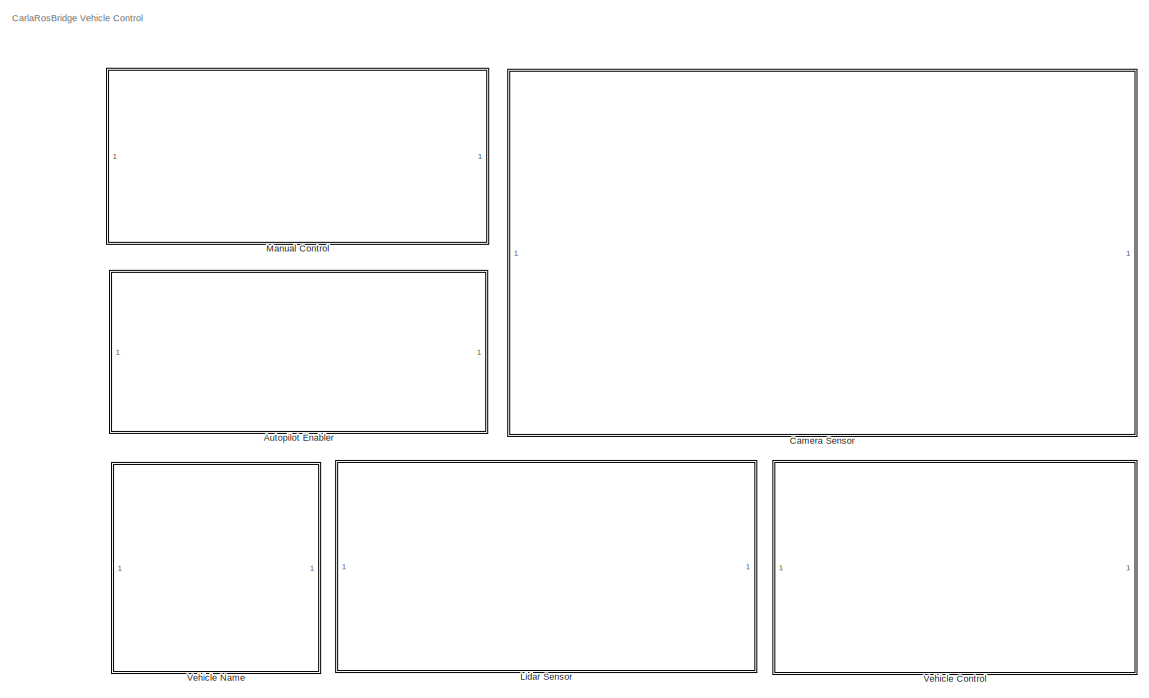
[diagram: root canvas - part 1/2, left side, full height]
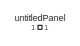
[diagram: root canvas - part 2/2, top right region]
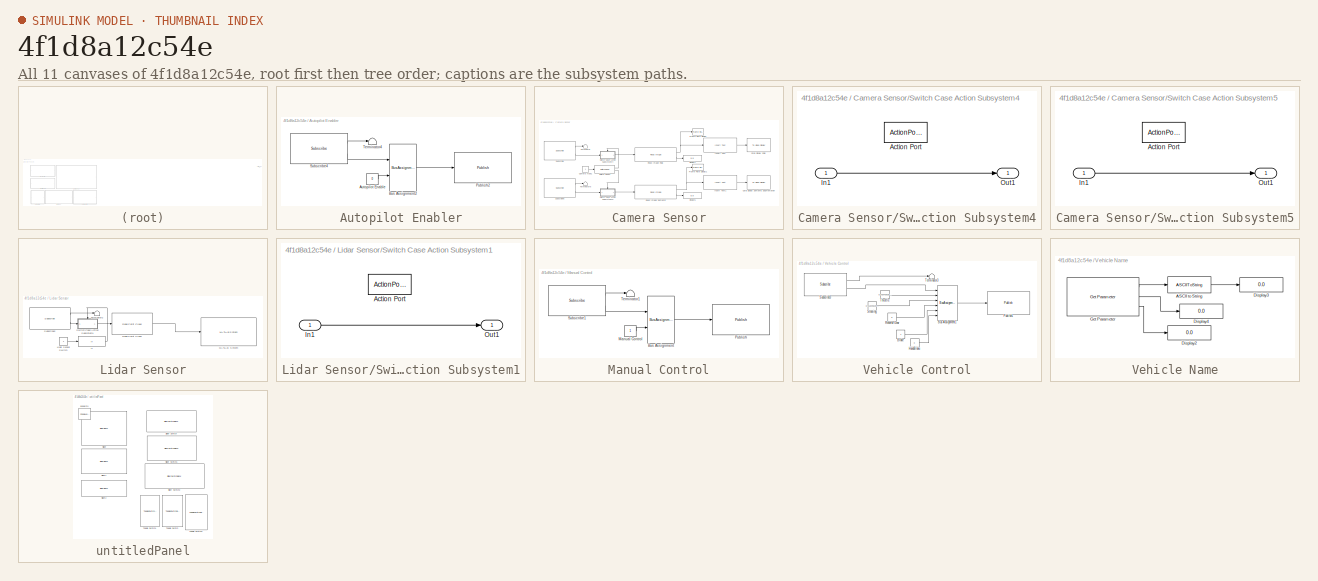
[diagram: thumbnail index - all 11 canvases of the model, root first then tree order]
MODEL slx_4f1d8a12c54e
KIND model
CONFIG AbsTol = auto
CONFIG EnableMultiTasking = on
CONFIG FixedStep = 0.2
CONFIG MaxStep = auto
CONFIG MinStep = auto
CONFIG RelTol = 1e-3
CONFIG SampleTimeConstraint = Unconstrained
CONFIG Solver = FixedStepAuto
CONFIG SolverName = FixedStepAuto
CONFIG StartTime = 0.0
CONFIG StopTime = inf
WORKSPACE source: mxarray member
WORKSPACE SL_ROS_VariableLengthArrays_MaxSizes: object (value not decoded)
BLOCK [SubSystem] Autopilot Enabler
  Ports = []
  RequestExecContextInheritance = off
BLOCK [Constant] Autopilot Enabler/Autopilot Enable
  OutDataTypeStr = boolean
  Value = 0
BLOCK [BusAssignment] Autopilot Enabler/Bus Assignment2
  AssignedSignals = Data
  Ports = [2, 1]
BLOCK [Reference] Autopilot Enabler/Publish2  REF=robotlib/Publish
  Ports = [1]
  SourceBlock = robotlib/Publish
  SourceProductBaseCode = RR
  SourceProductName = ROS Toolbox
  SourceType = ROS Publish
BLOCK [Reference] Autopilot Enabler/Subscribe4  REF=robotlib/Subscribe
  Ports = [0, 2]
  SourceBlock = robotlib/Subscribe
  SourceProductBaseCode = RR
  SourceProductName = ROS Toolbox
  SourceType = ROS Subscribe
BLOCK [Terminator] Autopilot Enabler/Terminator4
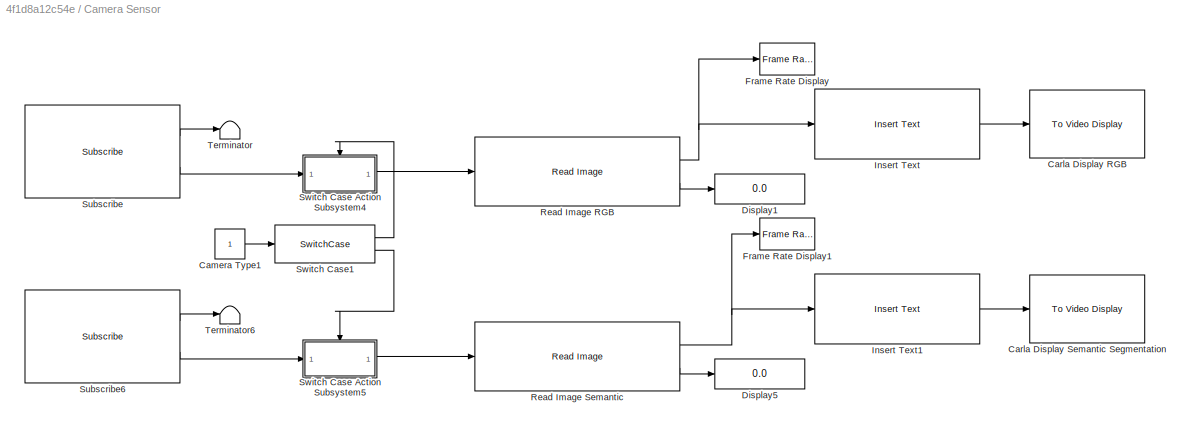
BLOCK [SubSystem] Camera Sensor
  Ports = []
  RequestExecContextInheritance = off
BLOCK [Constant] Camera Sensor/Camera Type1
BLOCK [Reference] Camera Sensor/Carla Display RGB  REF=visionsinks/To Video Display
  Ports = [1]
  SourceBlock = visionsinks/To Video Display
  SourceProductBaseCode = VP
  SourceProductName = Computer Vision Toolbox
  SourceType = To Video Display
BLOCK [Reference] Camera Sensor/Carla Display Semantic Segmentation  REF=visionsinks/To Video Display
  Ports = [1]
  SourceBlock = visionsinks/To Video Display
  SourceProductBaseCode = VP
  SourceProductName = Computer Vision Toolbox
  SourceType = To Video Display
BLOCK [Display] Camera Sensor/Display1
  Decimation = 1
  Ports = [1]
BLOCK [Display] Camera Sensor/Display5
  Decimation = 1
  Ports = [1]
BLOCK [Reference] Camera Sensor/Frame Rate Display  REF=visionsinks/Frame Rate
Display
  Ports = [1]
  SourceBlock = visionsinks/Frame Rate\nDisplay
  SourceProductBaseCode = VP
  SourceProductName = Computer Vision Toolbox
  SourceType = Frame Rate Display
BLOCK [Reference] Camera Sensor/Frame Rate Display1  REF=visionsinks/Frame Rate
Display
  Ports = [1]
  SourceBlock = visionsinks/Frame Rate\nDisplay
  SourceProductBaseCode = VP
  SourceProductName = Computer Vision Toolbox
  SourceType = Frame Rate Display
BLOCK [Reference] Camera Sensor/Insert Text  REF=visiontextngfix/Insert Text
  Ports = [1, 1]
  SourceBlock = visiontextngfix/Insert Text
  SourceProductBaseCode = VP
  SourceProductName = Computer Vision Toolbox
  SourceType = Insert Text
BLOCK [Reference] Camera Sensor/Insert Text1  REF=visiontextngfix/Insert Text
  Ports = [1, 1]
  SourceBlock = visiontextngfix/Insert Text
  SourceProductBaseCode = VP
  SourceProductName = Computer Vision Toolbox
  SourceType = Insert Text
BLOCK [Reference] Camera Sensor/Read Image RGB  REF=robotlib/Read Image
  Ports = [1, 2]
  SourceBlock = robotlib/Read Image
  SourceProductBaseCode = RO
  SourceProductName = Robotics System Toolbox
  SourceType = ros.slros.internal.block.ReadImage
BLOCK [Reference] Camera Sensor/Read Image Semantic  REF=robotlib/Read Image
  Ports = [1, 2]
  SourceBlock = robotlib/Read Image
  SourceProductBaseCode = RO
  SourceProductName = Robotics System Toolbox
  SourceType = ros.slros.internal.block.ReadImage
BLOCK [Reference] Camera Sensor/Subscribe  REF=robotlib/Subscribe
  Ports = [0, 2]
  SourceBlock = robotlib/Subscribe
  SourceProductBaseCode = RO
  SourceProductName = Robotics System Toolbox
  SourceType = ROS Subscribe
BLOCK [Reference] Camera Sensor/Subscribe6  REF=robotlib/Subscribe
  Ports = [0, 2]
  SourceBlock = robotlib/Subscribe
  SourceProductBaseCode = RO
  SourceProductName = Robotics System Toolbox
  SourceType = ROS Subscribe
BLOCK [SubSystem] Camera Sensor/Switch Case Action Subsystem4
  Ports = [1, 1, 0, 0, 0, 0, 0, 1]
  RequestExecContextInheritance = off
  TreatAsAtomicUnit = on
BLOCK [ActionPort] Camera Sensor/Switch Case Action Subsystem4/Action Port
  ActionPortLabel = case [ 0 ]:
BLOCK [Inport] Camera Sensor/Switch Case Action Subsystem4/In1
  IconDisplay = Port number
BLOCK [Outport] Camera Sensor/Switch Case Action Subsystem4/Out1
  IconDisplay = Port number
BLOCK [SubSystem] Camera Sensor/Switch Case Action Subsystem5
  Ports = [1, 1, 0, 0, 0, 0, 0, 1]
  RequestExecContextInheritance = off
  TreatAsAtomicUnit = on
BLOCK [ActionPort] Camera Sensor/Switch Case Action Subsystem5/Action Port
  ActionPortLabel = case [ 1 ]:
BLOCK [Inport] Camera Sensor/Switch Case Action Subsystem5/In1
  IconDisplay = Port number
BLOCK [Outport] Camera Sensor/Switch Case Action Subsystem5/Out1
  IconDisplay = Port number
BLOCK [SwitchCase] Camera Sensor/Switch Case1
  CaseConditions = {0,1}
  Ports = [1, 2]
  ShowDefaultCase = off
BLOCK [Terminator] Camera Sensor/Terminator
BLOCK [Terminator] Camera Sensor/Terminator6
BLOCK [SubSystem] Lidar Sensor
  Ports = []
  RequestExecContextInheritance = off
BLOCK [If] Lidar Sensor/If
  IfExpression = u1== 1
  Ports = [1, 1]
  ShowElse = off
BLOCK [Constant] Lidar Sensor/Lidar Sensor Switch
BLOCK [MATLABSystem] Lidar Sensor/MATLAB System
  MaskDisplay = disp('viewPC');\nport_label('input',1,'xyzpoint');
  MaskType = viewPC
  Ports = [1]
  SimulateUsing = Interpreted execution
  System = viewPC
BLOCK [Reference] Lidar Sensor/Read Point Cloud  REF=robotlib/Read Point Cloud
  Ports = [1, 1]
  SourceBlock = robotlib/Read Point Cloud
  SourceProductBaseCode = RR
  SourceProductName = ROS Toolbox
  SourceType = ros.slros.internal.block.ReadPointCloud
BLOCK [Reference] Lidar Sensor/Subscribe2  REF=robotlib/Subscribe
  Ports = [0, 2]
  SourceBlock = robotlib/Subscribe
  SourceProductBaseCode = RR
  SourceProductName = ROS Toolbox
  SourceType = ROS Subscribe
BLOCK [SubSystem] Lidar Sensor/Switch Case Action Subsystem1
  Ports = [1, 1, 0, 0, 0, 0, 0, 1]
  RequestExecContextInheritance = off
  TreatAsAtomicUnit = on
BLOCK [ActionPort] Lidar Sensor/Switch Case Action Subsystem1/Action Port
  ActionPortLabel = if(u1== 1)
BLOCK [Inport] Lidar Sensor/Switch Case Action Subsystem1/In1
  IconDisplay = Port number
BLOCK [Outport] Lidar Sensor/Switch Case Action Subsystem1/Out1
  IconDisplay = Port number
BLOCK [Terminator] Lidar Sensor/Terminator2
BLOCK [SubSystem] Manual Control
  Ports = []
  RequestExecContextInheritance = off
BLOCK [BusAssignment] Manual Control/Bus Assignment
  AssignedSignals = Data
  Ports = [2, 1]
BLOCK [Constant] Manual Control/Manual Control
  OutDataTypeStr = boolean
BLOCK [Reference] Manual Control/Publish  REF=robotlib/Publish
  Ports = [1]
  SourceBlock = robotlib/Publish
  SourceProductBaseCode = RR
  SourceProductName = ROS Toolbox
  SourceType = ROS Publish
BLOCK [Reference] Manual Control/Subscribe1  REF=robotlib/Subscribe
  Ports = [0, 2]
  SourceBlock = robotlib/Subscribe
  SourceProductBaseCode = RR
  SourceProductName = ROS Toolbox
  SourceType = ROS Subscribe
BLOCK [Terminator] Manual Control/Terminator1
BLOCK [SubSystem] Vehicle Control
  Ports = []
  RequestExecContextInheritance = off
BLOCK [Constant] Vehicle Control/Brake
  OutDataTypeStr = single
BLOCK [BusAssignment] Vehicle Control/Bus Assignment1
  AssignedSignals = Throttle,Steer,Reverse,Brake,HandBrake
  Ports = [6, 1]
BLOCK [Constant] Vehicle Control/HandBrake
  OutDataTypeStr = boolean
  Value = 0
BLOCK [Reference] Vehicle Control/Publish1  REF=robotlib/Publish
  Ports = [1]
  SourceBlock = robotlib/Publish
  SourceProductBaseCode = RR
  SourceProductName = ROS Toolbox
  SourceType = ROS Publish
BLOCK [Constant] Vehicle Control/Reverse Gear
  OutDataTypeStr = boolean
  Value = 0
BLOCK [Constant] Vehicle Control/Steering
  OutDataTypeStr = single
  Value = 0.01204819277108427
BLOCK [Reference] Vehicle Control/Subscribe3  REF=robotlib/Subscribe
  Ports = [0, 2]
  SourceBlock = robotlib/Subscribe
  SourceProductBaseCode = RR
  SourceProductName = ROS Toolbox
  SourceType = ROS Subscribe
BLOCK [Terminator] Vehicle Control/Terminator3
BLOCK [Constant] Vehicle Control/Throttle
  OutDataTypeStr = single
  Value = 0.4397590361445783
BLOCK [SubSystem] Vehicle Name
  Ports = []
  RequestExecContextInheritance = off
BLOCK [ASCIIToString] Vehicle Name/ASCII to String
BLOCK [Display] Vehicle Name/Display2
  Decimation = 1
  Ports = [1]
BLOCK [Display] Vehicle Name/Display3
  Decimation = 1
  Ports = [1]
BLOCK [Display] Vehicle Name/Display4
  Decimation = 1
  Ports = [1]
BLOCK [Reference] Vehicle Name/Get Parameter  REF=robotlib/Get Parameter
  Ports = [0, 3]
  SourceBlock = robotlib/Get Parameter
  SourceProductBaseCode = RR
  SourceProductName = ROS Toolbox
  SourceType = ROS Get Parameter
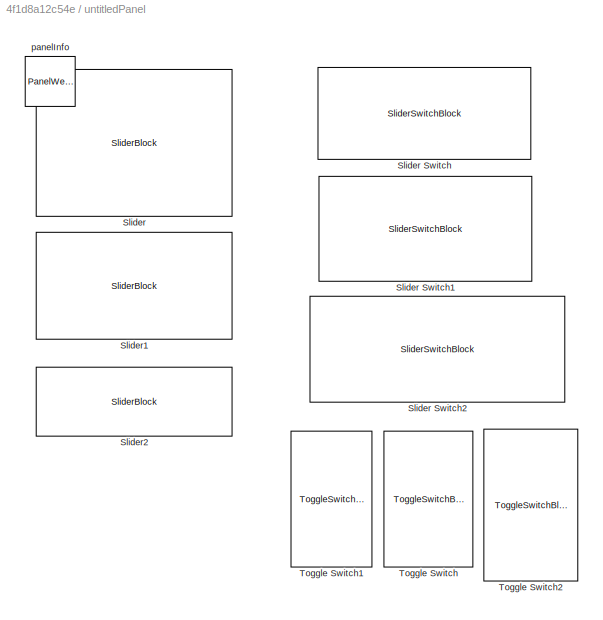
BLOCK [SubSystem] untitledPanel
  IsWebBlockPanel = on
  Ports = []
  RequestExecContextInheritance = off
  Tag = HiddenForWebPanel
BLOCK [SliderBlock] untitledPanel/Slider
  PanelInfo = {"panelId":"panelId-a6fc69b6-b572-4193-922b-c04a305ae533","type":"panelChild","version":"2019b","zIndex":1500005}
  ScaleMax = 1
  Tag = HiddenForWebPanel
BLOCK [SliderSwitchBlock] untitledPanel/Slider Switch
  PanelInfo = {"panelId":"panelId-a6fc69b6-b572-4193-922b-c04a305ae533","type":"panelChild","version":"2019b","zIndex":1500002}
  Tag = HiddenForWebPanel
BLOCK [SliderSwitchBlock] untitledPanel/Slider Switch1
  PanelInfo = {"panelId":"panelId-a6fc69b6-b572-4193-922b-c04a305ae533","type":"panelChild","version":"2019b","zIndex":1500004}
  Tag = HiddenForWebPanel
BLOCK [SliderSwitchBlock] untitledPanel/Slider Switch2
  PanelInfo = {"panelId":"panelId-a6fc69b6-b572-4193-922b-c04a305ae533","type":"panelChild","version":"2019b","zIndex":1500009}
  Tag = HiddenForWebPanel
BLOCK [SliderBlock] untitledPanel/Slider1
  PanelInfo = {"panelId":"panelId-a6fc69b6-b572-4193-922b-c04a305ae533","type":"panelChild","version":"2019b","zIndex":1500007}
  ScaleMax = 1
  ScaleMin = -1
  Tag = HiddenForWebPanel
BLOCK [SliderBlock] untitledPanel/Slider2
  PanelInfo = {"panelId":"panelId-a6fc69b6-b572-4193-922b-c04a305ae533","type":"panelChild","version":"2019b","zIndex":1500003}
  ScaleMax = 1
  Tag = HiddenForWebPanel
BLOCK [ToggleSwitchBlock] untitledPanel/Toggle Switch
  PanelInfo = {"panelId":"panelId-a6fc69b6-b572-4193-922b-c04a305ae533","type":"panelChild","version":"2019b","zIndex":1500006}
  Tag = HiddenForWebPanel
BLOCK [ToggleSwitchBlock] untitledPanel/Toggle Switch1
  PanelInfo = {"panelId":"panelId-a6fc69b6-b572-4193-922b-c04a305ae533","type":"panelChild","version":"2019b","zIndex":1500001}
  Tag = HiddenForWebPanel
BLOCK [ToggleSwitchBlock] untitledPanel/Toggle Switch2
  PanelInfo = {"panelId":"panelId-a6fc69b6-b572-4193-922b-c04a305ae533","type":"panelChild","version":"2019b","zIndex":1500008}
  Tag = HiddenForWebPanel
BLOCK [PanelWebBlock] untitledPanel/panelInfo
  PanelInfo = {"compacted":false,"height":570,"left":98,"panelId":"panelId-a6fc69b6-b572-4193-922b-c04a305ae533","top":143,"type":"panel","version":"2019b","visible":true,"width":622,"zIndex":1500001}
  PanelSnapshot = iVBORw0KGgoAAAANSUhEUgAAAm4AAAI6CAYAAACet8TyAAAACXBIWXMAAA7EAAAOxAGVKw4bAAAgAElEQVR4nOzdd3RU1doH4PfU6TPJTHoPqZSEEiQ0xYKIDRWE60VRESy3gPV6VVTAhiigXhuIfIqIWFAUkSZiAWnSA4SSnkkmdXo99fsjJtIJkGQy4X3Wci2mnfOeyXHmN3vvszcBf7r/N3kYAfAfAMgDgBhACCGEEEKdSQ0BAPDAb/IzAPBykItBCCGEEEJnQfzZ0vYzCSBekSzX5ejcJClxakmS6GAXhxBCCCGEAEiSFCSS9dJ/do8SVyTLtb01Vr0kSJQU7OoQQgghhFALSZJokPx6GprGtEGOzk1JgkQxLOvW6nQWkiSFINeIEEIIIYSg...<+61280ch>
  Tag = HiddenForWebPanel
ANNOTATION (root): CarlaRosBridge Vehicle Control
LINE Autopilot Enabler/Autopilot Enable:1 -> Autopilot Enabler/Bus Assignment2:2
LINE Autopilot Enabler/Bus Assignment2:1 -> Autopilot Enabler/Publish2:1
LINE Autopilot Enabler/Subscribe4:1 -> Autopilot Enabler/Terminator4:1
LINE Autopilot Enabler/Subscribe4:2 -> Autopilot Enabler/Bus Assignment2:1
LINE Camera Sensor/Camera Type1:1 -> Camera Sensor/Switch Case1:1
LINE Camera Sensor/Insert Text1:1 -> Camera Sensor/Carla Display Semantic Segmentation:1
LINE Camera Sensor/Insert Text:1 -> Camera Sensor/Carla Display RGB:1
NET Camera Sensor/Read Image RGB:1 -> Camera Sensor/Frame Rate Display:1, Camera Sensor/Insert Text:1
LINE Camera Sensor/Read Image RGB:2 -> Camera Sensor/Display1:1
NET Camera Sensor/Read Image Semantic:1 -> Camera Sensor/Frame Rate Display1:1, Camera Sensor/Insert Text1:1
LINE Camera Sensor/Read Image Semantic:2 -> Camera Sensor/Display5:1
LINE Camera Sensor/Subscribe6:1 -> Camera Sensor/Terminator6:1
LINE Camera Sensor/Subscribe6:2 -> Camera Sensor/Switch Case Action Subsystem5:1
LINE Camera Sensor/Subscribe:1 -> Camera Sensor/Terminator:1
LINE Camera Sensor/Subscribe:2 -> Camera Sensor/Switch Case Action Subsystem4:1
LINE Camera Sensor/Switch Case Action Subsystem4/In1:1 -> Camera Sensor/Switch Case Action Subsystem4/Out1:1
LINE Camera Sensor/Switch Case Action Subsystem4:1 -> Camera Sensor/Read Image RGB:1
LINE Camera Sensor/Switch Case Action Subsystem5/In1:1 -> Camera Sensor/Switch Case Action Subsystem5/Out1:1
LINE Camera Sensor/Switch Case Action Subsystem5:1 -> Camera Sensor/Read Image Semantic:1
LINE Camera Sensor/Switch Case1:1 -> Camera Sensor/Switch Case Action Subsystem4:ifaction
LINE Camera Sensor/Switch Case1:2 -> Camera Sensor/Switch Case Action Subsystem5:ifaction
LINE Lidar Sensor/If:1 -> Lidar Sensor/Switch Case Action Subsystem1:ifaction
LINE Lidar Sensor/Lidar Sensor Switch:1 -> Lidar Sensor/If:1
LINE Lidar Sensor/Read Point Cloud:1 -> Lidar Sensor/MATLAB System:1
LINE Lidar Sensor/Subscribe2:1 -> Lidar Sensor/Terminator2:1
LINE Lidar Sensor/Subscribe2:2 -> Lidar Sensor/Switch Case Action Subsystem1:1
LINE Lidar Sensor/Switch Case Action Subsystem1/In1:1 -> Lidar Sensor/Switch Case Action Subsystem1/Out1:1
LINE Lidar Sensor/Switch Case Action Subsystem1:1 -> Lidar Sensor/Read Point Cloud:1
LINE Manual Control/Bus Assignment:1 -> Manual Control/Publish:1
LINE Manual Control/Manual Control:1 -> Manual Control/Bus Assignment:2
LINE Manual Control/Subscribe1:1 -> Manual Control/Terminator1:1
LINE Manual Control/Subscribe1:2 -> Manual Control/Bus Assignment:1
LINE Vehicle Control/Brake:1 -> Vehicle Control/Bus Assignment1:5
LINE Vehicle Control/Bus Assignment1:1 -> Vehicle Control/Publish1:1
LINE Vehicle Control/HandBrake:1 -> Vehicle Control/Bus Assignment1:6
LINE Vehicle Control/Reverse Gear:1 -> Vehicle Control/Bus Assignment1:4
LINE Vehicle Control/Steering:1 -> Vehicle Control/Bus Assignment1:3
LINE Vehicle Control/Subscribe3:1 -> Vehicle Control/Terminator3:1
LINE Vehicle Control/Subscribe3:2 -> Vehicle Control/Bus Assignment1:1
LINE Vehicle Control/Throttle:1 -> Vehicle Control/Bus Assignment1:2
LINE Vehicle Name/ASCII to String:1 -> Vehicle Name/Display3:1
LINE Vehicle Name/Get Parameter:1 -> Vehicle Name/ASCII to String:1
LINE Vehicle Name/Get Parameter:2 -> Vehicle Name/Display4:1
LINE Vehicle Name/Get Parameter:3 -> Vehicle Name/Display2:1
note: NET lines group one-source signal fan-out (src -> all destinations, sorted); 1:1 wires keep LINE
